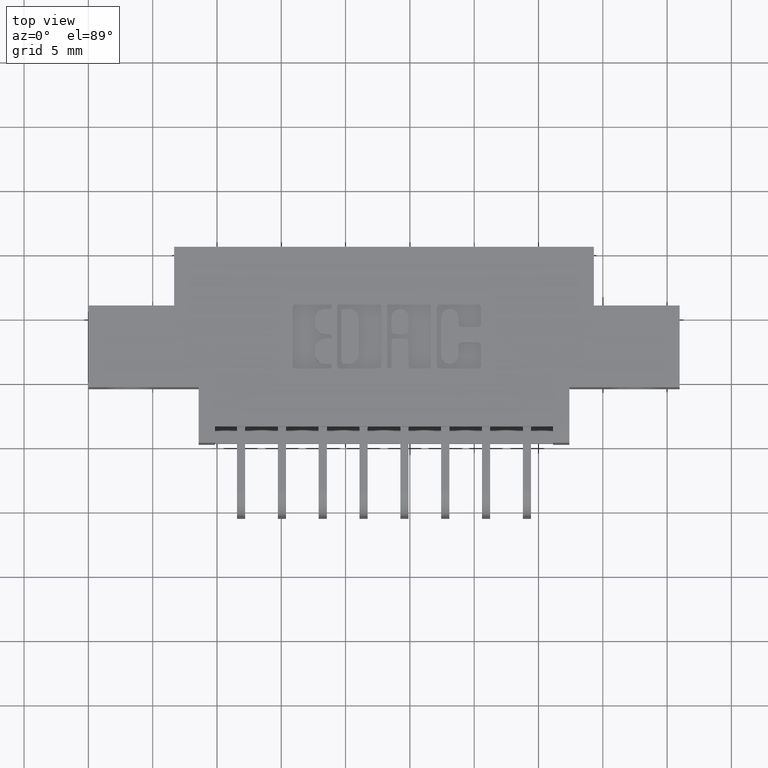
[diagram: clean part render]
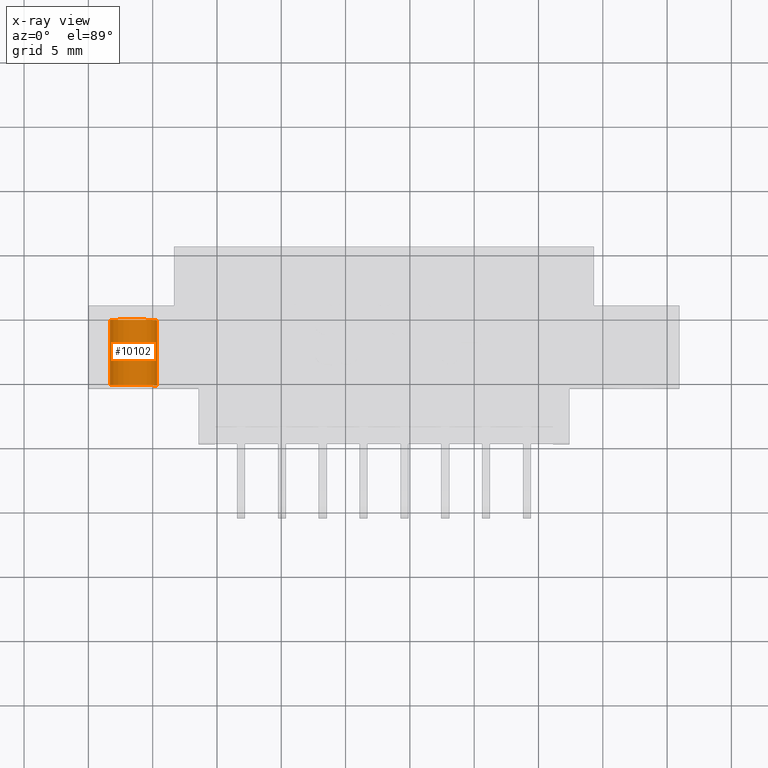
[diagram: x-ray — body ghosted, one internal face saturated and labeled with its STEP entity id]
A machine part, top view, then the same camera in x-ray: the body is ghosted and one INTERNAL B-rep face — a face not visible from any outside direction — is saturated and labeled: STEP entity #10102.
In plain terms, the highlighted cylindrical surface (edge-blend (fillet) strip) has radius 1.9685 mm, axis along (0, 1, 0).
Its self-contained STEP definition (entity closure, byte-faithful):
#114 = EDGE_LOOP ( 'NONE', ( #12135, #6147, #10847, #5075 ) ) ;
#303 = EDGE_CURVE ( 'NONE', #9842, #3927, #2159, .T. ) ;
#496 = CYLINDRICAL_SURFACE ( 'NONE', #1105, 0.07750000000000005500 ) ;
#1105 = AXIS2_PLACEMENT_3D ( 'NONE', #12598, #8563, #8822 ) ;
#1694 = DIRECTION ( 'NONE',  ( 0.0000000000000000000, 1.000000000000000000, 0.0000000000000000000 ) ) ;
#1829 = VERTEX_POINT ( 'NONE', #2666 ) ;
#1939 = DIRECTION ( 'NONE',  ( 0.0000000000000000000, -1.000000000000000000, 0.0000000000000000000 ) ) ;
#2159 = LINE ( 'NONE', #2751, #12143 ) ;
#2653 = DIRECTION ( 'NONE',  ( 0.0000000000000000000, 0.0000000000000000000, 1.000000000000000000 ) ) ;
#2666 = CARTESIAN_POINT ( 'NONE',  ( 0.0000000000000000000, 0.2400000000000000500, -0.07749999999999999900 ) ) ;
#2751 = CARTESIAN_POINT ( 'NONE',  ( 9.491012693391994100E-018, 0.2400000000000000500, 0.07750000000000005500 ) ) ;
#3039 = AXIS2_PLACEMENT_3D ( 'NONE', #11709, #1694, #2653 ) ;
#3229 = CARTESIAN_POINT ( 'NONE',  ( 9.491012693391986400E-018, 0.2400000000000000500, 0.07749999999999999900 ) ) ;
#3251 = DIRECTION ( 'NONE',  ( 0.0000000000000000000, -1.000000000000000000, 0.0000000000000000000 ) ) ;
#3903 = AXIS2_PLACEMENT_3D ( 'NONE', #6385, #10522, #7438 ) ;
#3918 = LINE ( 'NONE', #11143, #7804 ) ;
#3927 = VERTEX_POINT ( 'NONE', #5277 ) ;
#4958 = EDGE_CURVE ( 'NONE', #3927, #11814, #5062, .T. ) ;
#5062 = CIRCLE ( 'NONE', #3903, 0.07750000000000005500 ) ;
#5075 = ORIENTED_EDGE ( 'NONE', *, *, #7083, .F. ) ;
#5277 = CARTESIAN_POINT ( 'NONE',  ( 9.491012693391986400E-018, 0.03999999999999998000, 0.07749999999999999900 ) ) ;
#6147 = ORIENTED_EDGE ( 'NONE', *, *, #303, .T. ) ;
#6385 = CARTESIAN_POINT ( 'NONE',  ( 0.0000000000000000000, 0.03999999999999998000, 0.0000000000000000000 ) ) ;
#6488 = EDGE_CURVE ( 'NONE', #9842, #1829, #10015, .T. ) ;
#7083 = EDGE_CURVE ( 'NONE', #1829, #11814, #3918, .T. ) ;
#7438 = DIRECTION ( 'NONE',  ( 0.0000000000000000000, 0.0000000000000000000, 1.000000000000000000 ) ) ;
#7804 = VECTOR ( 'NONE', #3251, 39.37007874015748100 ) ;
#8563 = DIRECTION ( 'NONE',  ( 0.0000000000000000000, -1.000000000000000000, 0.0000000000000000000 ) ) ;
#8822 = DIRECTION ( 'NONE',  ( 0.0000000000000000000, 0.0000000000000000000, -1.000000000000000000 ) ) ;
#9540 = CARTESIAN_POINT ( 'NONE',  ( 0.0000000000000000000, 0.03999999999999998000, -0.07749999999999999900 ) ) ;
#9680 = FACE_OUTER_BOUND ( 'NONE', #114, .T. ) ;
#9842 = VERTEX_POINT ( 'NONE', #3229 ) ;
#10015 = CIRCLE ( 'NONE', #3039, 0.07750000000000005500 ) ;
#10102 = ADVANCED_FACE ( 'NONE', ( #9680 ), #496, .T. ) ;
#10522 = DIRECTION ( 'NONE',  ( 0.0000000000000000000, 1.000000000000000000, 0.0000000000000000000 ) ) ;
#10847 = ORIENTED_EDGE ( 'NONE', *, *, #4958, .T. ) ;
#11143 = CARTESIAN_POINT ( 'NONE',  ( 0.0000000000000000000, 0.2400000000000000500, -0.07750000000000005500 ) ) ;
#11709 = CARTESIAN_POINT ( 'NONE',  ( 0.0000000000000000000, 0.2400000000000000500, 0.0000000000000000000 ) ) ;
#11814 = VERTEX_POINT ( 'NONE', #9540 ) ;
#12135 = ORIENTED_EDGE ( 'NONE', *, *, #6488, .F. ) ;
#12143 = VECTOR ( 'NONE', #1939, 39.37007874015748100 ) ;
#12598 = CARTESIAN_POINT ( 'NONE',  ( 0.0000000000000000000, 0.2400000000000000500, 0.0000000000000000000 ) ) ;